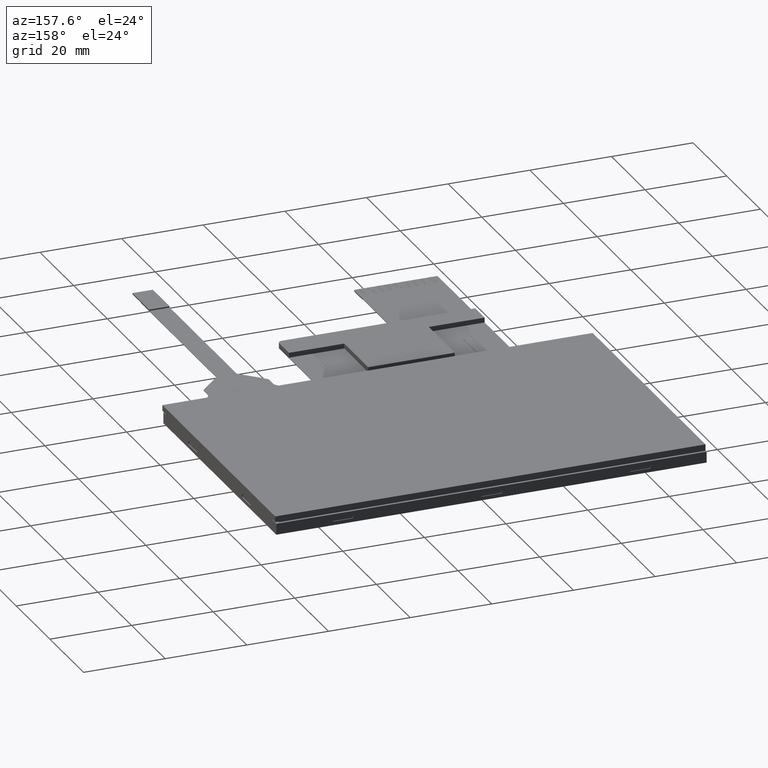
[diagram: clean part render]
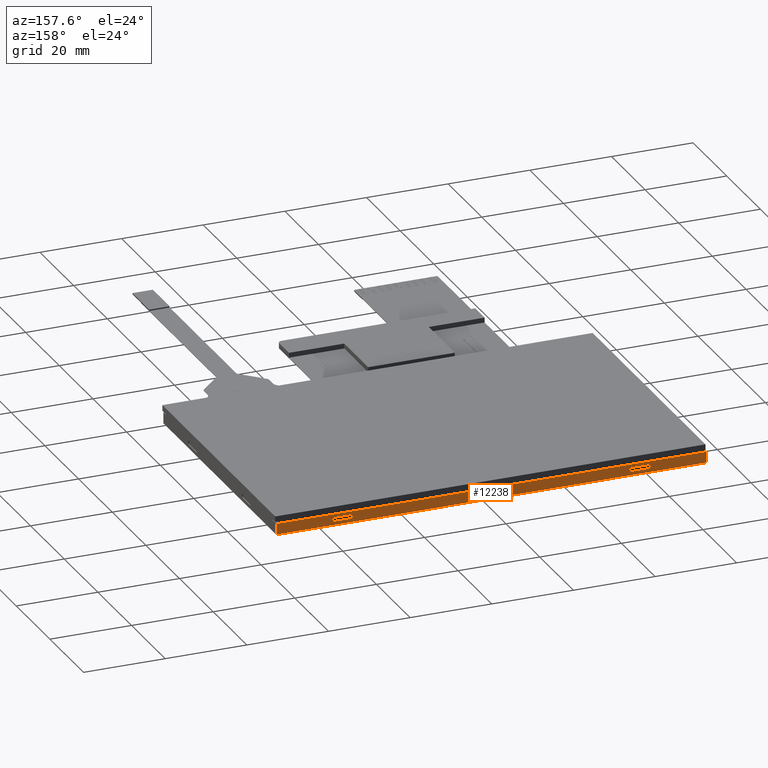
[diagram: same view with one face highlighted and labeled with its STEP entity id]
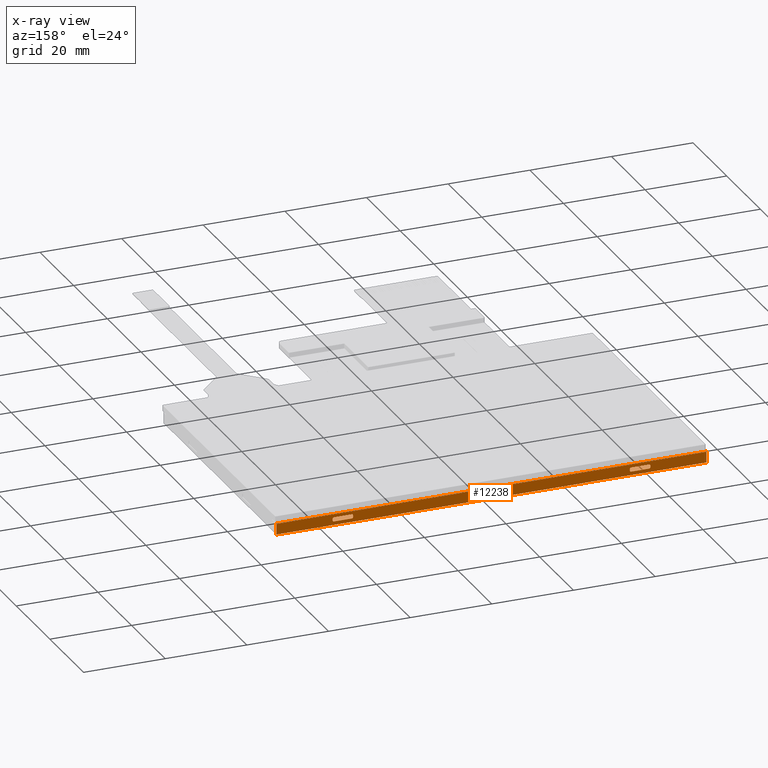
[diagram: x-ray of the same camera — body ghosted, the highlighted face saturated]
A machine part, auxiliary view. The second image highlights one B-rep face of the part: STEP entity #12238.
The next image is the same camera in x-ray: the body ghosted, the highlighted face saturated — about 0% of this face is hidden behind the body in this view.
In plain terms, the highlighted planar face has unit normal (0, -1, 0).
Its self-contained STEP definition (entity closure, byte-faithful):
#103=FACE_BOUND('',#1061,.T.);
#104=FACE_BOUND('',#1062,.T.);
#105=FACE_BOUND('',#1063,.T.);
#176=CIRCLE('',#12857,0.300000000000002);
#178=CIRCLE('',#12860,0.300000000000002);
#180=CIRCLE('',#12863,0.300000000000002);
#182=CIRCLE('',#12866,0.300000000000002);
#184=CIRCLE('',#12869,0.3);
#186=CIRCLE('',#12872,0.3);
#188=CIRCLE('',#12875,0.3);
#190=CIRCLE('',#12878,0.3);
#192=CIRCLE('',#12881,0.300000000000002);
#194=CIRCLE('',#12884,0.300000000000002);
#196=CIRCLE('',#12887,0.300000000000002);
#198=CIRCLE('',#12890,0.300000000000002);
#424=FACE_OUTER_BOUND('',#1060,.T.);
#1060=EDGE_LOOP('',(#8763,#8764,#8765,#8766));
#1061=EDGE_LOOP('',(#8767,#8768,#8769,#8770,#8771,#8772,#8773,#8774));
#1062=EDGE_LOOP('',(#8775,#8776,#8777,#8778,#8779,#8780,#8781,#8782));
#1063=EDGE_LOOP('',(#8783,#8784,#8785,#8786,#8787,#8788,#8789,#8790));
#1580=LINE('',#16766,#3250);
#1615=LINE('',#16851,#3285);
#1871=LINE('',#17552,#3541);
#1873=LINE('',#17555,#3543);
#1874=LINE('',#17557,#3544);
#1876=LINE('',#17560,#3546);
#1878=LINE('',#17563,#3548);
#1880=LINE('',#17566,#3550);
#1882=LINE('',#17569,#3552);
#1885=LINE('',#17573,#3555);
#1887=LINE('',#17576,#3557);
#1889=LINE('',#17579,#3559);
#1890=LINE('',#17581,#3560);
#1892=LINE('',#17584,#3562);
#1935=LINE('',#17664,#3605);
#1941=LINE('',#17674,#3611);
#3250=VECTOR('',#13549,1000.);
#3285=VECTOR('',#13610,1000.);
#3541=VECTOR('',#14238,1000.);
#3543=VECTOR('',#14242,1000.);
#3544=VECTOR('',#14245,1000.);
#3546=VECTOR('',#14249,1000.);
#3548=VECTOR('',#14253,1000.);
#3550=VECTOR('',#14257,1000.);
#3552=VECTOR('',#14261,1000.);
#3555=VECTOR('',#14266,1000.);
#3557=VECTOR('',#14270,1000.);
#3559=VECTOR('',#14274,1000.);
#3560=VECTOR('',#14277,1000.);
#3562=VECTOR('',#14281,1000.);
#3605=VECTOR('',#14370,1000.);
#3611=VECTOR('',#14384,1000.);
#4913=VERTEX_POINT('',#16763);
#4914=VERTEX_POINT('',#16765);
#4950=VERTEX_POINT('',#16848);
#4951=VERTEX_POINT('',#16850);
#5099=VERTEX_POINT('',#17260);
#5100=VERTEX_POINT('',#17262);
#5103=VERTEX_POINT('',#17269);
#5104=VERTEX_POINT('',#17271);
#5107=VERTEX_POINT('',#17278);
#5108=VERTEX_POINT('',#17280);
#5111=VERTEX_POINT('',#17287);
#5112=VERTEX_POINT('',#17289);
#5115=VERTEX_POINT('',#17296);
#5116=VERTEX_POINT('',#17298);
#5119=VERTEX_POINT('',#17305);
#5120=VERTEX_POINT('',#17307);
#5123=VERTEX_POINT('',#17314);
#5124=VERTEX_POINT('',#17316);
#5127=VERTEX_POINT('',#17323);
#5128=VERTEX_POINT('',#17325);
#5131=VERTEX_POINT('',#17332);
#5132=VERTEX_POINT('',#17334);
#5135=VERTEX_POINT('',#17341);
#5136=VERTEX_POINT('',#17343);
#5139=VERTEX_POINT('',#17350);
#5140=VERTEX_POINT('',#17352);
#5143=VERTEX_POINT('',#17359);
#5144=VERTEX_POINT('',#17361);
#6130=EDGE_CURVE('',#4913,#4914,#1580,.T.);
#6173=EDGE_CURVE('',#4951,#4950,#1615,.T.);
#6372=EDGE_CURVE('',#5100,#5099,#176,.T.);
#6376=EDGE_CURVE('',#5104,#5103,#178,.T.);
#6380=EDGE_CURVE('',#5108,#5107,#180,.T.);
#6384=EDGE_CURVE('',#5112,#5111,#182,.T.);
#6388=EDGE_CURVE('',#5116,#5115,#184,.T.);
#6392=EDGE_CURVE('',#5120,#5119,#186,.T.);
#6396=EDGE_CURVE('',#5124,#5123,#188,.T.);
#6400=EDGE_CURVE('',#5128,#5127,#190,.T.);
#6404=EDGE_CURVE('',#5132,#5131,#192,.T.);
#6408=EDGE_CURVE('',#5136,#5135,#194,.T.);
#6412=EDGE_CURVE('',#5140,#5139,#196,.T.);
#6416=EDGE_CURVE('',#5144,#5143,#198,.T.);
#6513=EDGE_CURVE('',#5123,#5128,#1871,.T.);
#6515=EDGE_CURVE('',#5115,#5124,#1873,.T.);
#6516=EDGE_CURVE('',#5116,#5119,#1874,.T.);
#6518=EDGE_CURVE('',#5120,#5127,#1876,.T.);
#6520=EDGE_CURVE('',#5135,#5132,#1878,.T.);
#6522=EDGE_CURVE('',#5136,#5139,#1880,.T.);
#6524=EDGE_CURVE('',#5140,#5143,#1882,.T.);
#6527=EDGE_CURVE('',#5131,#5144,#1885,.T.);
#6529=EDGE_CURVE('',#5107,#5112,#1887,.T.);
#6531=EDGE_CURVE('',#5099,#5108,#1889,.T.);
#6532=EDGE_CURVE('',#5100,#5103,#1890,.T.);
#6534=EDGE_CURVE('',#5104,#5111,#1892,.T.);
#6577=EDGE_CURVE('',#4950,#4914,#1935,.T.);
#6583=EDGE_CURVE('',#4951,#4913,#1941,.T.);
#8763=ORIENTED_EDGE('',*,*,#6577,.T.);
#8764=ORIENTED_EDGE('',*,*,#6130,.F.);
#8765=ORIENTED_EDGE('',*,*,#6583,.F.);
#8766=ORIENTED_EDGE('',*,*,#6173,.T.);
#8767=ORIENTED_EDGE('',*,*,#6531,.T.);
#8768=ORIENTED_EDGE('',*,*,#6380,.T.);
#8769=ORIENTED_EDGE('',*,*,#6529,.T.);
#8770=ORIENTED_EDGE('',*,*,#6384,.T.);
#8771=ORIENTED_EDGE('',*,*,#6534,.F.);
#8772=ORIENTED_EDGE('',*,*,#6376,.T.);
#8773=ORIENTED_EDGE('',*,*,#6532,.F.);
#8774=ORIENTED_EDGE('',*,*,#6372,.T.);
#8775=ORIENTED_EDGE('',*,*,#6520,.T.);
#8776=ORIENTED_EDGE('',*,*,#6404,.T.);
#8777=ORIENTED_EDGE('',*,*,#6527,.T.);
#8778=ORIENTED_EDGE('',*,*,#6416,.T.);
#8779=ORIENTED_EDGE('',*,*,#6524,.F.);
#8780=ORIENTED_EDGE('',*,*,#6412,.T.);
#8781=ORIENTED_EDGE('',*,*,#6522,.F.);
#8782=ORIENTED_EDGE('',*,*,#6408,.T.);
#8783=ORIENTED_EDGE('',*,*,#6515,.T.);
#8784=ORIENTED_EDGE('',*,*,#6396,.T.);
#8785=ORIENTED_EDGE('',*,*,#6513,.T.);
#8786=ORIENTED_EDGE('',*,*,#6400,.T.);
#8787=ORIENTED_EDGE('',*,*,#6518,.F.);
#8788=ORIENTED_EDGE('',*,*,#6392,.T.);
#8789=ORIENTED_EDGE('',*,*,#6516,.F.);
#8790=ORIENTED_EDGE('',*,*,#6388,.T.);
#11645=PLANE('',#12971);
#12238=ADVANCED_FACE('',(#424,#103,#104,#105),#11645,.F.);
#12857=AXIS2_PLACEMENT_3D('',#17263,#13982,#13983);
#12860=AXIS2_PLACEMENT_3D('',#17272,#13990,#13991);
#12863=AXIS2_PLACEMENT_3D('',#17281,#13998,#13999);
#12866=AXIS2_PLACEMENT_3D('',#17290,#14006,#14007);
#12869=AXIS2_PLACEMENT_3D('',#17299,#14014,#14015);
#12872=AXIS2_PLACEMENT_3D('',#17308,#14022,#14023);
#12875=AXIS2_PLACEMENT_3D('',#17317,#14030,#14031);
#12878=AXIS2_PLACEMENT_3D('',#17326,#14038,#14039);
#12881=AXIS2_PLACEMENT_3D('',#17335,#14046,#14047);
#12884=AXIS2_PLACEMENT_3D('',#17344,#14054,#14055);
#12887=AXIS2_PLACEMENT_3D('',#17353,#14062,#14063);
#12890=AXIS2_PLACEMENT_3D('',#17362,#14070,#14071);
#12971=AXIS2_PLACEMENT_3D('',#17673,#14382,#14383);
#13549=DIRECTION('',(5.83882195012889E-17,2.55534994944385E-33,-1.));
#13610=DIRECTION('',(5.83882195012889E-17,2.55534994944385E-33,-1.));
#13982=DIRECTION('center_axis',(8.88178419700111E-16,-1.,4.93038065763141E-32));
#13983=DIRECTION('ref_axis',(1.,8.88178419700111E-16,5.83882195012889E-17));
#13990=DIRECTION('center_axis',(8.88178419700111E-16,-1.,4.93038065763141E-32));
#13991=DIRECTION('ref_axis',(1.,8.88178419700111E-16,5.83882195012889E-17));
#13998=DIRECTION('center_axis',(8.88178419700111E-16,-1.,4.93038065763141E-32));
#13999=DIRECTION('ref_axis',(1.,8.88178419700111E-16,5.83882195012889E-17));
#14006=DIRECTION('center_axis',(8.88178419700111E-16,-1.,4.93038065763141E-32));
#14007=DIRECTION('ref_axis',(1.,8.88178419700111E-16,5.83882195012889E-17));
#14014=DIRECTION('center_axis',(8.88178419700111E-16,-1.,4.93038065763141E-32));
#14015=DIRECTION('ref_axis',(1.,8.88178419700111E-16,5.83882195012889E-17));
#14022=DIRECTION('center_axis',(8.88178419700111E-16,-1.,4.93038065763141E-32));
#14023=DIRECTION('ref_axis',(1.,8.88178419700111E-16,5.83882195012889E-17));
#14030=DIRECTION('center_axis',(8.88178419700111E-16,-1.,4.93038065763141E-32));
#14031=DIRECTION('ref_axis',(1.,8.88178419700111E-16,5.83882195012889E-17));
#14038=DIRECTION('center_axis',(8.88178419700111E-16,-1.,4.93038065763141E-32));
#14039=DIRECTION('ref_axis',(1.,8.88178419700111E-16,5.83882195012889E-17));
#14046=DIRECTION('center_axis',(8.88178419700111E-16,-1.,4.93038065763141E-32));
#14047=DIRECTION('ref_axis',(1.,8.88178419700111E-16,5.83882195012889E-17));
#14054=DIRECTION('center_axis',(8.88178419700111E-16,-1.,4.93038065763141E-32));
#14055=DIRECTION('ref_axis',(1.,8.88178419700111E-16,5.83882195012889E-17));
#14062=DIRECTION('center_axis',(8.88178419700111E-16,-1.,4.93038065763141E-32));
#14063=DIRECTION('ref_axis',(1.,8.88178419700111E-16,5.83882195012889E-17));
#14070=DIRECTION('center_axis',(8.88178419700111E-16,-1.,4.93038065763141E-32));
#14071=DIRECTION('ref_axis',(1.,8.88178419700111E-16,5.83882195012889E-17));
#14238=DIRECTION('',(5.83882195012889E-17,2.55534994944385E-33,-1.));
#14242=DIRECTION('',(-1.,-8.88178419700111E-16,-5.83882195012889E-17));
#14245=DIRECTION('',(5.83882195012889E-17,2.55534994944385E-33,-1.));
#14249=DIRECTION('',(-1.,-8.88178419700111E-16,-5.83882195012889E-17));
#14253=DIRECTION('',(5.83882195012889E-17,2.55534994944385E-33,-1.));
#14257=DIRECTION('',(1.,8.88178419700111E-16,5.83882195012889E-17));
#14261=DIRECTION('',(5.83882195012889E-17,2.55534994944385E-33,-1.));
#14266=DIRECTION('',(1.,8.88178419700111E-16,5.83882195012889E-17));
#14270=DIRECTION('',(5.83882195012889E-17,2.55534994944385E-33,-1.));
#14274=DIRECTION('',(-1.,-8.88178419700111E-16,-5.83882195012889E-17));
#14277=DIRECTION('',(5.83882195012889E-17,2.55534994944385E-33,-1.));
#14281=DIRECTION('',(-1.,-8.88178419700111E-16,-5.83882195012889E-17));
#14370=DIRECTION('',(-1.,-8.88178419700111E-16,-5.83882195012889E-17));
#14382=DIRECTION('center_axis',(8.88178419700111E-16,-1.,4.93038065763141E-32));
#14383=DIRECTION('ref_axis',(1.,8.88178419700111E-16,5.83882195012889E-17));
#14384=DIRECTION('',(-1.,-8.88178419700111E-16,-5.83882195012889E-17));
#16763=CARTESIAN_POINT('',(-52.7500000000002,31.1779999999982,-1.55999999999993));
#16765=CARTESIAN_POINT('',(-52.7500000000002,31.1779999999982,-4.25999999999993));
#16766=CARTESIAN_POINT('',(-52.7500000000002,31.1779999999982,-1.55999999999993));
#16848=CARTESIAN_POINT('',(52.6499999999999,31.1779999999983,-4.25999999999993));
#16850=CARTESIAN_POINT('',(52.6499999999999,31.1779999999983,-1.55999999999993));
#16851=CARTESIAN_POINT('',(52.6499999999999,31.1779999999983,-1.55999999999993));
#17260=CARTESIAN_POINT('',(38.5499999999999,31.1779999999983,-2.35999999999993));
#17262=CARTESIAN_POINT('',(38.8499999999999,31.1779999999983,-2.65999999999993));
#17263=CARTESIAN_POINT('Origin',(38.5499999999999,31.1779999999983,-2.65999999999993));
#17269=CARTESIAN_POINT('',(38.8499999999999,31.1779999999983,-3.05999999999993));
#17271=CARTESIAN_POINT('',(38.5499999999999,31.1779999999983,-3.35999999999993));
#17272=CARTESIAN_POINT('Origin',(38.5499999999999,31.1779999999983,-3.05999999999993));
#17278=CARTESIAN_POINT('',(33.8499999999999,31.1779999999983,-2.65999999999993));
#17280=CARTESIAN_POINT('',(34.1499999999999,31.1779999999983,-2.35999999999993));
#17281=CARTESIAN_POINT('Origin',(34.1499999999999,31.1779999999983,-2.65999999999993));
#17287=CARTESIAN_POINT('',(34.1499999999999,31.1779999999983,-3.35999999999993));
#17289=CARTESIAN_POINT('',(33.8499999999999,31.1779999999983,-3.05999999999993));
#17290=CARTESIAN_POINT('Origin',(34.1499999999999,31.1779999999983,-3.05999999999993));
#17296=CARTESIAN_POINT('',(2.14999999999987,31.1779999999982,-2.35999999999993));
#17298=CARTESIAN_POINT('',(2.44999999999987,31.1779999999982,-2.65999999999993));
#17299=CARTESIAN_POINT('Origin',(2.14999999999987,31.1779999999982,-2.65999999999993));
#17305=CARTESIAN_POINT('',(2.44999999999987,31.1779999999982,-3.05999999999993));
#17307=CARTESIAN_POINT('',(2.14999999999987,31.1779999999982,-3.35999999999993));
#17308=CARTESIAN_POINT('Origin',(2.14999999999987,31.1779999999982,-3.05999999999993));
#17314=CARTESIAN_POINT('',(-2.55000000000013,31.1779999999982,-2.65999999999993));
#17316=CARTESIAN_POINT('',(-2.25000000000013,31.1779999999982,-2.35999999999993));
#17317=CARTESIAN_POINT('Origin',(-2.25000000000013,31.1779999999982,-2.65999999999993));
#17323=CARTESIAN_POINT('',(-2.25000000000013,31.1779999999982,-3.35999999999993));
#17325=CARTESIAN_POINT('',(-2.55000000000013,31.1779999999982,-3.05999999999993));
#17326=CARTESIAN_POINT('Origin',(-2.25000000000013,31.1779999999982,-3.05999999999993));
#17332=CARTESIAN_POINT('',(-38.6500000000002,31.1779999999982,-3.35999999999993));
#17334=CARTESIAN_POINT('',(-38.9500000000001,31.1779999999982,-3.05999999999993));
#17335=CARTESIAN_POINT('Origin',(-38.6500000000002,31.1779999999982,-3.05999999999993));
#17341=CARTESIAN_POINT('',(-38.9500000000001,31.1779999999982,-2.65999999999993));
#17343=CARTESIAN_POINT('',(-38.6500000000002,31.1779999999982,-2.35999999999993));
#17344=CARTESIAN_POINT('Origin',(-38.6500000000002,31.1779999999982,-2.65999999999993));
#17350=CARTESIAN_POINT('',(-34.2500000000002,31.1779999999982,-2.35999999999993));
#17352=CARTESIAN_POINT('',(-33.9500000000001,31.1779999999982,-2.65999999999993));
#17353=CARTESIAN_POINT('Origin',(-34.2500000000002,31.1779999999982,-2.65999999999993));
#17359=CARTESIAN_POINT('',(-33.9500000000001,31.1779999999982,-3.05999999999993));
#17361=CARTESIAN_POINT('',(-34.2500000000002,31.1779999999982,-3.35999999999993));
#17362=CARTESIAN_POINT('Origin',(-34.2500000000002,31.1779999999982,-3.05999999999993));
#17552=CARTESIAN_POINT('',(-2.55000000000013,31.1779999999982,-2.35999999999993));
#17555=CARTESIAN_POINT('',(2.44999999999987,31.1779999999982,-2.35999999999993));
#17557=CARTESIAN_POINT('',(2.44999999999987,31.1779999999982,-2.35999999999993));
#17560=CARTESIAN_POINT('',(2.44999999999987,31.1779999999982,-3.35999999999993));
#17563=CARTESIAN_POINT('',(-38.9500000000001,31.1779999999982,-2.35999999999993));
#17566=CARTESIAN_POINT('',(-38.9500000000001,31.1779999999982,-2.35999999999993));
#17569=CARTESIAN_POINT('',(-33.9500000000001,31.1779999999982,-2.35999999999993));
#17573=CARTESIAN_POINT('',(-38.9500000000001,31.1779999999982,-3.35999999999993));
#17576=CARTESIAN_POINT('',(33.8499999999999,31.1779999999983,-2.35999999999993));
#17579=CARTESIAN_POINT('',(38.8499999999999,31.1779999999983,-2.35999999999993));
#17581=CARTESIAN_POINT('',(38.8499999999999,31.1779999999983,-2.35999999999993));
#17584=CARTESIAN_POINT('',(38.8499999999999,31.1779999999983,-3.35999999999993));
#17664=CARTESIAN_POINT('',(52.6499999999999,31.1779999999983,-4.25999999999993));
#17673=CARTESIAN_POINT('Origin',(52.6499999999999,31.1779999999983,-1.55999999999993));
#17674=CARTESIAN_POINT('',(52.6499999999999,31.1779999999983,-1.55999999999993));